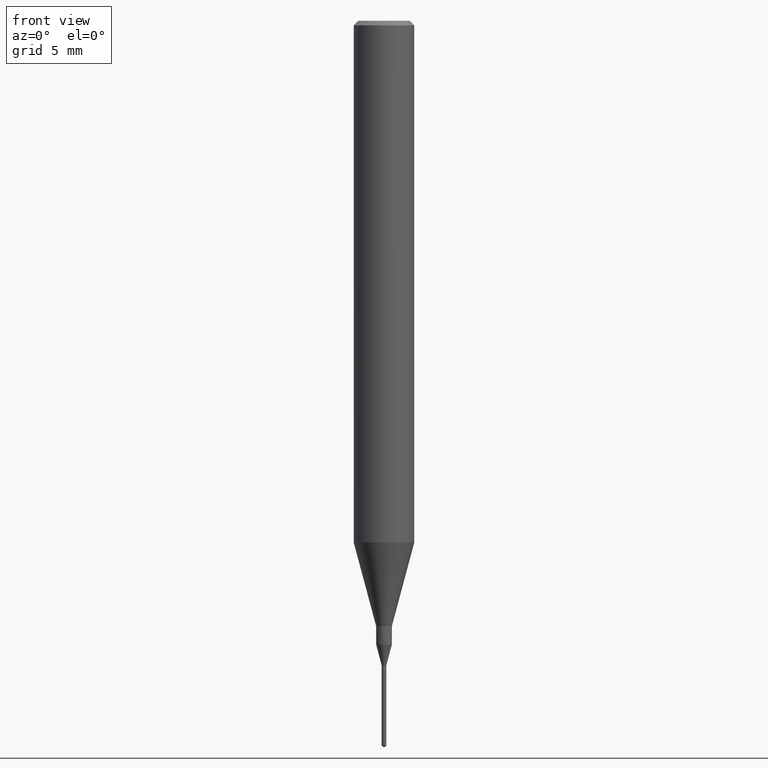
[diagram: clean part render]
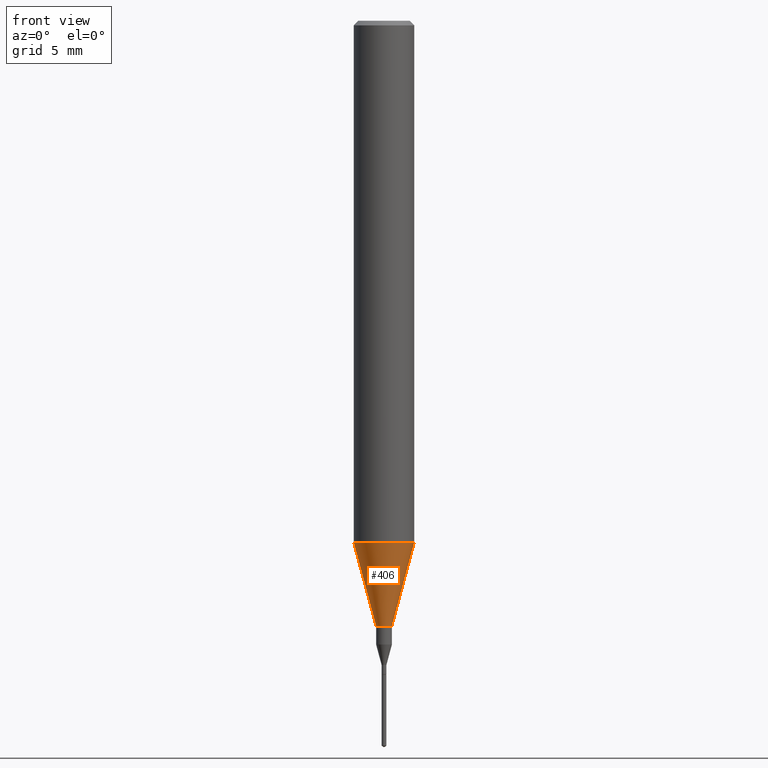
[diagram: same view with one face highlighted and labeled with its STEP entity id]
A machine part, front view. The second image highlights one B-rep face of the part: STEP entity #406.
In plain terms, the highlighted conical surface has half-angle 15 deg.
Its self-contained STEP definition (entity closure, byte-faithful):
#12 = CARTESIAN_POINT ( 'NONE',  ( 0.06250000000000012490, -4.198131499960668153E-15, -1.077392650149939346 ) ) ;
#16 = CARTESIAN_POINT ( 'NONE',  ( -0.01624999999999999709, -4.315251812701535156E-15, -1.250000000000000000 ) ) ;
#17 = CARTESIAN_POINT ( 'NONE',  ( 2.634730117954813298E-29, -3.761696332605275695E-15, -1.077392650149939346 ) ) ;
#51 = EDGE_LOOP ( 'NONE', ( #188, #498, #330, #369 ) ) ;
#77 = EDGE_CURVE ( 'NONE', #182, #548, #251, .T. ) ;
#79 = CARTESIAN_POINT ( 'NONE',  ( 0.01624999999999999709, -4.477824817066334148E-15, -1.250000000000000000 ) ) ;
#94 = VERTEX_POINT ( 'NONE', #197 ) ;
#114 = LINE ( 'NONE', #12, #287 ) ;
#123 = AXIS2_PLACEMENT_3D ( 'NONE', #300, #562, #342 ) ;
#182 = VERTEX_POINT ( 'NONE', #16 ) ;
#188 = ORIENTED_EDGE ( 'NONE', *, *, #490, .F. ) ;
#197 = CARTESIAN_POINT ( 'NONE',  ( 0.06250000000000012490, -4.198131499960668153E-15, -1.077392650149939346 ) ) ;
#201 = CARTESIAN_POINT ( 'NONE',  ( 2.634730117954813298E-29, -3.761696332605275695E-15, -1.077392650149939346 ) ) ;
#208 = LINE ( 'NONE', #524, #388 ) ;
#220 = EDGE_CURVE ( 'NONE', #265, #94, #574, .T. ) ;
#224 = AXIS2_PLACEMENT_3D ( 'NONE', #201, #256, #351 ) ;
#251 = CIRCLE ( 'NONE', #123, 0.01624999999999999709 ) ;
#256 = DIRECTION ( 'NONE',  ( -2.445468806185136597E-29, 3.491481338843145583E-15, 1.000000000000000000 ) ) ;
#265 = VERTEX_POINT ( 'NONE', #293 ) ;
#287 = VECTOR ( 'NONE', #569, 39.37007874015747433 ) ;
#293 = CARTESIAN_POINT ( 'NONE',  ( -0.06250000000000012490, -3.317607122755211895E-15, -1.077392650149939346 ) ) ;
#300 = CARTESIAN_POINT ( 'NONE',  ( 3.056836007731421306E-29, -4.364351673553932471E-15, -1.250000000000000000 ) ) ;
#326 = AXIS2_PLACEMENT_3D ( 'NONE', #17, #349, #568 ) ;
#330 = ORIENTED_EDGE ( 'NONE', *, *, #483, .T. ) ;
#342 = DIRECTION ( 'NONE',  ( 1.000000000000000000, -6.982962677686288799E-15, 0.000000000000000000 ) ) ;
#349 = DIRECTION ( 'NONE',  ( -2.445468806185136597E-29, 3.491481338843145583E-15, 1.000000000000000000 ) ) ;
#351 = DIRECTION ( 'NONE',  ( 1.000000000000000000, -6.982962677686264344E-15, 0.000000000000000000 ) ) ;
#369 = ORIENTED_EDGE ( 'NONE', *, *, #220, .F. ) ;
#388 = VECTOR ( 'NONE', #520, 39.37007874015747433 ) ;
#406 = ADVANCED_FACE ( 'NONE', ( #488 ), #576, .T. ) ;
#483 = EDGE_CURVE ( 'NONE', #548, #94, #114, .T. ) ;
#488 = FACE_OUTER_BOUND ( 'NONE', #51, .T. ) ;
#490 = EDGE_CURVE ( 'NONE', #182, #265, #208, .T. ) ;
#498 = ORIENTED_EDGE ( 'NONE', *, *, #77, .T. ) ;
#520 = DIRECTION ( 'NONE',  ( -0.2588190451025214611, 5.211531920934551042E-15, 0.9659258262890682012 ) ) ;
#524 = CARTESIAN_POINT ( 'NONE',  ( -0.06250000000000012490, -3.317607122755211895E-15, -1.077392650149939346 ) ) ;
#548 = VERTEX_POINT ( 'NONE', #79 ) ;
#562 = DIRECTION ( 'NONE',  ( -2.445468806185136597E-29, 3.491481338843145583E-15, 1.000000000000000000 ) ) ;
#568 = DIRECTION ( 'NONE',  ( 1.000000000000000000, -6.982962677686264344E-15, 0.000000000000000000 ) ) ;
#569 = DIRECTION ( 'NONE',  ( 0.2588190451025214611, 1.565188264969621573E-15, 0.9659258262890682012 ) ) ;
#574 = CIRCLE ( 'NONE', #224, 0.06250000000000012490 ) ;
#576 = CONICAL_SURFACE ( 'NONE', #326, 0.06250000000000012490, 0.2617993877991501295 ) ;